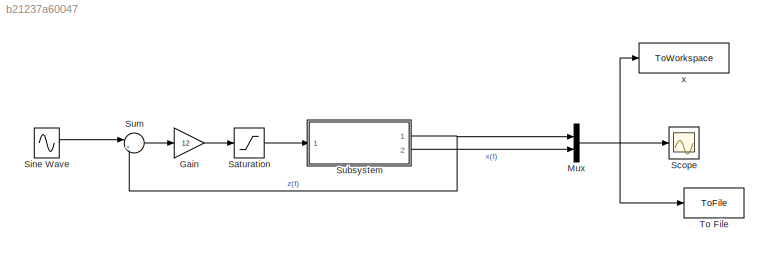
MODEL slx_b21237a60047
KIND model
CONFIG AbsTol = auto
CONFIG EnableMultiTasking = off
CONFIG FixedStep = auto
CONFIG MaxStep = auto
CONFIG MinStep = auto
CONFIG RelTol = 1e-3
CONFIG SampleTimeConstraint = Unconstrained
CONFIG SolverName = VariableStepAuto
CONFIG StartTime = 0.0
CONFIG StopTime = 10.0
BLOCK [Gain] Gain
  Gain = 12
BLOCK [Mux] Mux
  DisplayOption = bar
  Inputs = 2
  Ports = [2, 1]
BLOCK [Saturate] Saturation
  LowerLimit = -2.5
  UpperLimit = 2.5
BLOCK [Scope] Scope
  Floating = off
  NumInputPorts = 1
  Ports = [1]
  ScopeSpecificationString = Simulink.scopes.TimeScopeBlockCfg('CurrentConfiguration', extmgr.ConfigurationSet(extmgr.Configuration('Core','General UI',true),extmgr.Configuration('Core','Source UI',true),extmgr.Configuration('Sources','WiredSimulink',true),extmgr.Configuration('Visuals','Time Domain',true,'SerializedDisplays',{struct('MinYLimReal','-0.03204','MaxYLimReal','0.04937','YLabelReal','','MinYLimMag','0.00000','MaxY...<+1358ch>
BLOCK [Sin] Sine Wave
  Amplitude = 0.4
  Frequency = 16.5
  Ports = [0, 1]
  SampleTime = 0
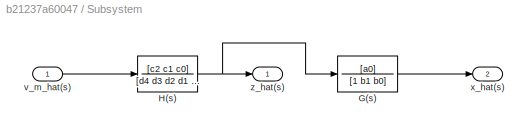
BLOCK [SubSystem] Subsystem
  Ports = [1, 2]
  RequestExecContextInheritance = off
BLOCK [TransferFcn] Subsystem/G(s)
  Denominator = [1 b1 b0]
  Numerator = [a0]
BLOCK [TransferFcn] Subsystem/H(s)
  Denominator = [d4 d3 d2 d1 0]
  Numerator = [c2 c1 c0]
BLOCK [Inport] Subsystem/v_m_hat(s)
BLOCK [Outport] Subsystem/x_hat(s)
  Port = 2
BLOCK [Outport] Subsystem/z_hat(s)
BLOCK [Sum] Sum
  Inputs = |+-
  Ports = [2, 1]
BLOCK [ToFile] To File
  Filename = l2p2q6.mat
  Ports = [1]
  SaveFormat = Timeseries
BLOCK [ToWorkspace] x
  FixptAsFi = on
  MaxDataPoints = inf
  Ports = [1]
  SampleTime = -1
  SaveFormat = Timeseries
  VariableName = x
LINE Gain:1 -> Saturation:1
NET Mux:1 -> Scope:1, To File:1, x:1
LINE Saturation:1 -> Subsystem:1
LINE Sine Wave:1 -> Sum:1
LINE Subsystem/G(s):1 -> Subsystem/x_hat(s):1
NET Subsystem/H(s):1 -> Subsystem/G(s):1, Subsystem/z_hat(s):1
LINE Subsystem/v_m_hat(s):1 -> Subsystem/H(s):1
NET Subsystem:1 -> Mux:1, Sum:2
LINE Subsystem:2 -> Mux:2
LINE Sum:1 -> Gain:1
note: NET lines group one-source signal fan-out (src -> all destinations, sorted); 1:1 wires keep LINE
